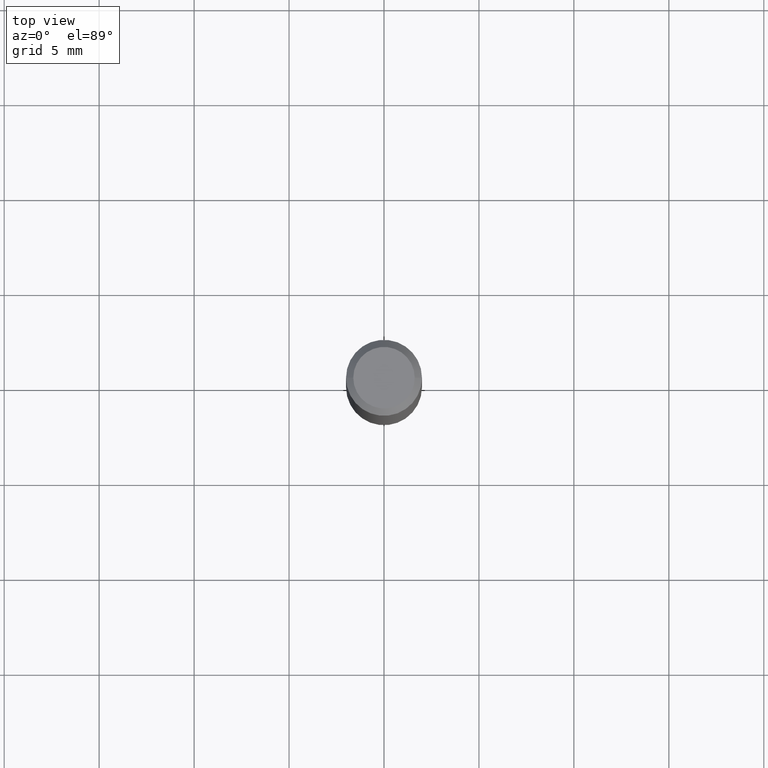
[diagram: clean part render]
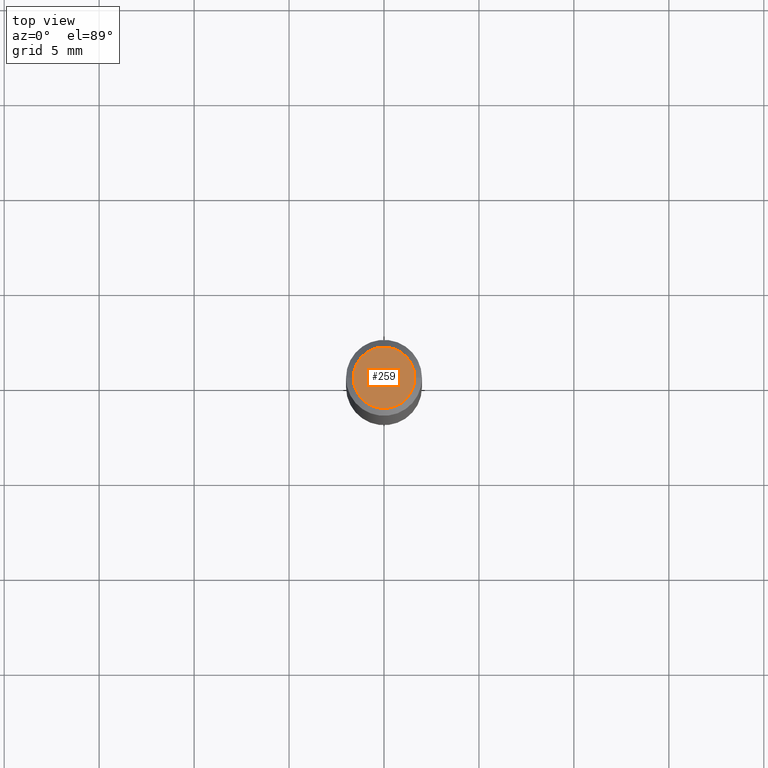
[diagram: same view with one face highlighted and labeled with its STEP entity id]
A machine part, top view. The second image highlights one B-rep face of the part: STEP entity #259.
In plain terms, the highlighted planar face has unit normal (0, -0, -1).
Its self-contained STEP definition (entity closure, byte-faithful):
#11 = AXIS2_PLACEMENT_3D ( 'NONE', #178, #246, #313 ) ;
#32 = ORIENTED_EDGE ( 'NONE', *, *, #286, .T. ) ;
#80 = CARTESIAN_POINT ( 'NONE',  ( -0.06375000000000000111, 4.713499807438221352E-16, -4.447989849365133964E-16 ) ) ;
#81 = EDGE_LOOP ( 'NONE', ( #32, #408 ) ) ;
#82 = AXIS2_PLACEMENT_3D ( 'NONE', #319, #462, #136 ) ;
#136 = DIRECTION ( 'NONE',  ( 1.000000000000000000, -6.982962677686265922E-15, 4.852736867747365646E-29 ) ) ;
#173 = CIRCLE ( 'NONE', #82, 0.06375000000000000111 ) ;
#178 = CARTESIAN_POINT ( 'NONE',  ( 4.451638707024993845E-16, 0.06375000000000000111, -4.449814278195055523E-16 ) ) ;
#185 = AXIS2_PLACEMENT_3D ( 'NONE', #453, #382, #243 ) ;
#217 = CARTESIAN_POINT ( 'NONE',  ( 0.06375000000000000111, -5.149965923825459168E-16, -4.447989849365068883E-16 ) ) ;
#243 = DIRECTION ( 'NONE',  ( 1.000000000000000000, -6.982962677686265922E-15, 4.852736867747365646E-29 ) ) ;
#246 = DIRECTION ( 'NONE',  ( 2.438088387897960049E-29, -3.491481338843145188E-15, -1.000000000000000000 ) ) ;
#259 = ADVANCED_FACE ( 'NONE', ( #310 ), #412, .F. ) ;
#286 = EDGE_CURVE ( 'NONE', #452, #379, #289, .T. ) ;
#289 = CIRCLE ( 'NONE', #185, 0.06375000000000000111 ) ;
#293 = EDGE_CURVE ( 'NONE', #379, #452, #173, .T. ) ;
#310 = FACE_OUTER_BOUND ( 'NONE', #81, .T. ) ;
#313 = DIRECTION ( 'NONE',  ( -1.000000000000000000, 6.982962677686265922E-15, -4.876176775795935793E-29 ) ) ;
#319 = CARTESIAN_POINT ( 'NONE',  ( 1.087742042685048154E-44, -1.553007355442198790E-30, -4.447989849365101424E-16 ) ) ;
#379 = VERTEX_POINT ( 'NONE', #217 ) ;
#382 = DIRECTION ( 'NONE',  ( -2.445468806185136597E-29, 3.491481338843145583E-15, 1.000000000000000000 ) ) ;
#408 = ORIENTED_EDGE ( 'NONE', *, *, #293, .T. ) ;
#412 = PLANE ( 'NONE',  #11 ) ;
#452 = VERTEX_POINT ( 'NONE', #80 ) ;
#453 = CARTESIAN_POINT ( 'NONE',  ( 1.087742042685048154E-44, -1.553007355442198790E-30, -4.447989849365101424E-16 ) ) ;
#462 = DIRECTION ( 'NONE',  ( -2.445468806185136597E-29, 3.491481338843145583E-15, 1.000000000000000000 ) ) ;